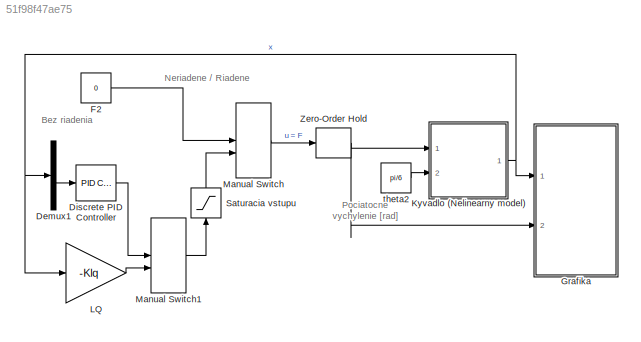
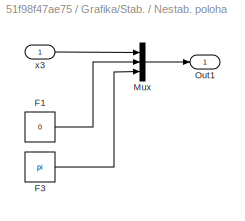
MODEL slx_51f98f47ae75
KIND model
CONFIG AbsTol = auto
CONFIG EnableMultiTasking = on
CONFIG FixedStep = Ts
CONFIG MaxStep = 0.01
CONFIG MinStep = auto
CONFIG PreLoadFcn = m1=0.4;        % Hmotnost vozika [kg]\nm2=0.08;      % Hmotnost kyvadla [kg]\nl=0.2;            % Vzdialenost taziska od osi rotacie [m]\ng=9.81;         % Tiazove zrychlenie [m/s2]\nb=0.1;           % Koeficient trenia [m/s]\n\n\n
CONFIG RelTol = 1e-3
CONFIG SampleTimeConstraint = Unconstrained
CONFIG Solver = FixedStepAuto
CONFIG SolverName = FixedStepAuto
CONFIG StartFcn = kyvadloOfflineLQ
CONFIG StartTime = 0.0
CONFIG StopTime = 10
BLOCK [Demux] Demux1
  DisplayOption = bar
  Ports = [1, 4]
BLOCK [Reference] Discrete PID Controller  REF=simulink/Continuous/PID Controller
  Ports = [1, 1]
  SourceBlock = simulink/Continuous/PID Controller
  SourceProductBaseCode = SL
  SourceProductName = Simulink
  SourceType = PID 1dof
BLOCK [Constant] F2
  Value = 0
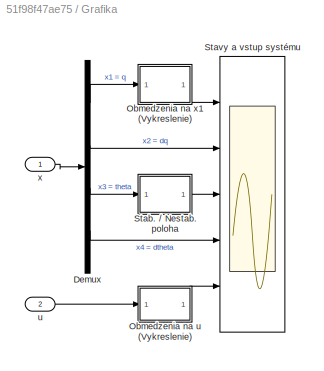
BLOCK [SubSystem] Grafika
  Ports = [2]
  RequestExecContextInheritance = off
BLOCK [Scope] Grafika/ Stavy a vstup systému
  Floating = off
  NumInputPorts = 5
  Ports = [5]
  ScopeSpecificationString = Simulink.scopes.TimeScopeBlockCfg('CurrentConfiguration', extmgr.ConfigurationSet(extmgr.Configuration('Core','General UI',true,'FigureColor',[1 1 1]),extmgr.Configuration('Core','Source UI',true),extmgr.Configuration('Sources','WiredSimulink',true,'DataLoggingSaveFormat','Structure','DataLoggingDecimation','1','DataLoggingDecimateData',true,'DataLogging',true,'DataLoggingVariableName','imp_nonlin...<+7888ch>
BLOCK [Demux] Grafika/Demux
  DisplayOption = bar
  Ports = [1, 4]
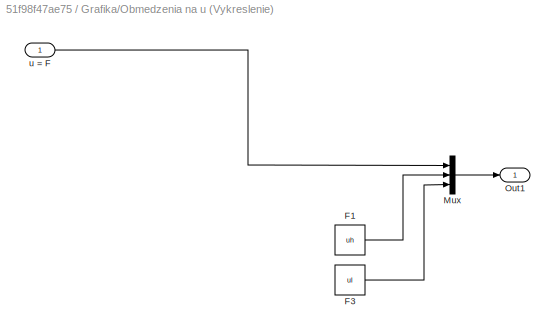
BLOCK [SubSystem] Grafika/Obmedzenia na u (Vykreslenie)
  Ports = [1, 1]
  RequestExecContextInheritance = off
BLOCK [Constant] Grafika/Obmedzenia na u (Vykreslenie)/F1
  Value = uh
BLOCK [Constant] Grafika/Obmedzenia na u (Vykreslenie)/F3
  Value = ul
BLOCK [Mux] Grafika/Obmedzenia na u (Vykreslenie)/Mux
  DisplayOption = bar
  Inputs = 3
  Ports = [3, 1]
BLOCK [Outport] Grafika/Obmedzenia na u (Vykreslenie)/Out1
  IconDisplay = Port number
BLOCK [Inport] Grafika/Obmedzenia na u (Vykreslenie)/u = F
  IconDisplay = Port number
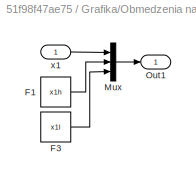
BLOCK [SubSystem] Grafika/Obmedzenia na x1 (Vykreslenie) 
  Ports = [1, 1]
  RequestExecContextInheritance = off
BLOCK [Constant] Grafika/Obmedzenia na x1 (Vykreslenie) /F1
  Value = x1h
BLOCK [Constant] Grafika/Obmedzenia na x1 (Vykreslenie) /F3
  Value = x1l
BLOCK [Mux] Grafika/Obmedzenia na x1 (Vykreslenie) /Mux
  DisplayOption = bar
  Inputs = 3
  Ports = [3, 1]
BLOCK [Outport] Grafika/Obmedzenia na x1 (Vykreslenie) /Out1
  IconDisplay = Port number
BLOCK [Inport] Grafika/Obmedzenia na x1 (Vykreslenie) /x1
  IconDisplay = Port number
BLOCK [SubSystem] Grafika/Stab. // Nestab. poloha
  Ports = [1, 1]
  RequestExecContextInheritance = off
BLOCK [Constant] Grafika/Stab. // Nestab. poloha/F1
  Value = 0
BLOCK [Constant] Grafika/Stab. // Nestab. poloha/F3
  Value = pi
BLOCK [Mux] Grafika/Stab. // Nestab. poloha/Mux
  DisplayOption = bar
  Inputs = 3
  Ports = [3, 1]
BLOCK [Outport] Grafika/Stab. // Nestab. poloha/Out1
  IconDisplay = Port number
BLOCK [Inport] Grafika/Stab. // Nestab. poloha/x3
  IconDisplay = Port number
BLOCK [Inport] Grafika/u
  IconDisplay = Port number
  Port = 2
BLOCK [Inport] Grafika/x
  IconDisplay = Port number
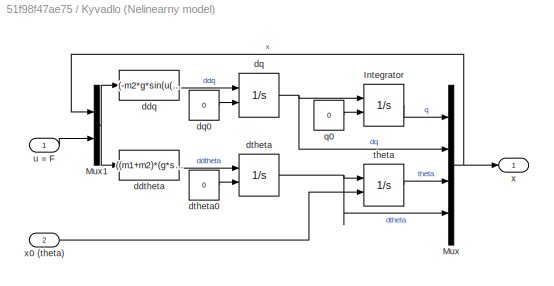
BLOCK [SubSystem] Kyvadlo (Nelinearny model)
  Ports = [2, 1]
  RequestExecContextInheritance = off
BLOCK [Integrator] Kyvadlo (Nelinearny model)/Integrator
  InitialConditionSource = external
  Ports = [2, 1]
BLOCK [Mux] Kyvadlo (Nelinearny model)/Mux
  DisplayOption = bar
  Ports = [4, 1]
BLOCK [Mux] Kyvadlo (Nelinearny model)/Mux1
  DisplayOption = bar
  Inputs = 2
  Ports = [2, 1]
BLOCK [Fcn] Kyvadlo (Nelinearny model)/ddq
  Expr = (-m2*g*sin(u(3))*cos(u(3))+m2*l*((u(4))^2)*sin(u(3))+b*m2*u(4)*cos(u(3))+u(5))/(m1+(1-(cos(u(3)))^2)*m2)
BLOCK [Fcn] Kyvadlo (Nelinearny model)/ddtheta
  Expr = ((m1+m2)*(g*sin(u(3))-b*u(4))-(m2*l*((u(4))^2)*sin(u(3))+u(5))*cos(u(3)))/(l*(m1+(1-(cos(u(3)))^2)*m2))
BLOCK [Integrator] Kyvadlo (Nelinearny model)/dq
  InitialConditionSource = external
  Ports = [2, 1]
BLOCK [Constant] Kyvadlo (Nelinearny model)/dq0
  Value = 0
BLOCK [Integrator] Kyvadlo (Nelinearny model)/dtheta
  InitialConditionSource = external
  Ports = [2, 1]
BLOCK [Constant] Kyvadlo (Nelinearny model)/dtheta0
  Value = 0
BLOCK [Constant] Kyvadlo (Nelinearny model)/q0
  Value = 0
BLOCK [Integrator] Kyvadlo (Nelinearny model)/theta
  InitialConditionSource = external
  Ports = [2, 1]
BLOCK [Inport] Kyvadlo (Nelinearny model)/u = F
  IconDisplay = Port number
BLOCK [Outport] Kyvadlo (Nelinearny model)/x
  IconDisplay = Port number
BLOCK [Inport] Kyvadlo (Nelinearny model)/x0 (theta)
  IconDisplay = Port number
  Port = 2
BLOCK [Gain] LQ
  Gain = -Klq
  Multiplication = Matrix(K*u) (u vector)
  OutDataTypeStr = Inherit: Inherit via internal rule
  ParamDataTypeStr = Inherit: Inherit via internal rule
  SaturateOnIntegerOverflow = off
BLOCK [ManualSwitch] Manual Switch
BLOCK [ManualSwitch] Manual Switch1
BLOCK [Saturate] Saturacia vstupu
  InputPortMap = u0
  LowerLimit = ul
  Ports = [1, 1]
  UpperLimit = uh
BLOCK [ZeroOrderHold] Zero-Order Hold
  SampleTime = Ts
BLOCK [Constant] theta2
  Value = pi/6
ANNOTATION (root): Pociatocne vychylenie [rad]
ANNOTATION (root): Bez riadenia
ANNOTATION (root): Neriadene / Riadene
LINE Demux1:3 -> Discrete PID Controller:1
LINE Discrete PID Controller:1 -> Manual Switch1:1
LINE F2:1 -> Manual Switch:1
LINE Grafika/Demux:1 -> Grafika/Obmedzenia na x1 (Vykreslenie) :1
LINE Grafika/Demux:2 -> Grafika/ Stavy a vstup systému:2
LINE Grafika/Demux:3 -> Grafika/Stab. // Nestab. poloha:1
LINE Grafika/Demux:4 -> Grafika/ Stavy a vstup systému:4
LINE Grafika/Obmedzenia na u (Vykreslenie)/F1:1 -> Grafika/Obmedzenia na u (Vykreslenie)/Mux:2
LINE Grafika/Obmedzenia na u (Vykreslenie)/F3:1 -> Grafika/Obmedzenia na u (Vykreslenie)/Mux:3
LINE Grafika/Obmedzenia na u (Vykreslenie)/Mux:1 -> Grafika/Obmedzenia na u (Vykreslenie)/Out1:1
LINE Grafika/Obmedzenia na u (Vykreslenie)/u = F:1 -> Grafika/Obmedzenia na u (Vykreslenie)/Mux:1
LINE Grafika/Obmedzenia na u (Vykreslenie):1 -> Grafika/ Stavy a vstup systému:5
LINE Grafika/Obmedzenia na x1 (Vykreslenie) /F1:1 -> Grafika/Obmedzenia na x1 (Vykreslenie) /Mux:2
LINE Grafika/Obmedzenia na x1 (Vykreslenie) /F3:1 -> Grafika/Obmedzenia na x1 (Vykreslenie) /Mux:3
LINE Grafika/Obmedzenia na x1 (Vykreslenie) /Mux:1 -> Grafika/Obmedzenia na x1 (Vykreslenie) /Out1:1
LINE Grafika/Obmedzenia na x1 (Vykreslenie) /x1:1 -> Grafika/Obmedzenia na x1 (Vykreslenie) /Mux:1
LINE Grafika/Obmedzenia na x1 (Vykreslenie) :1 -> Grafika/ Stavy a vstup systému:1
LINE Grafika/Stab. // Nestab. poloha/F1:1 -> Grafika/Stab. // Nestab. poloha/Mux:2
LINE Grafika/Stab. // Nestab. poloha/F3:1 -> Grafika/Stab. // Nestab. poloha/Mux:3
LINE Grafika/Stab. // Nestab. poloha/Mux:1 -> Grafika/Stab. // Nestab. poloha/Out1:1
LINE Grafika/Stab. // Nestab. poloha/x3:1 -> Grafika/Stab. // Nestab. poloha/Mux:1
LINE Grafika/Stab. // Nestab. poloha:1 -> Grafika/ Stavy a vstup systému:3
LINE Grafika/u:1 -> Grafika/Obmedzenia na u (Vykreslenie):1
LINE Grafika/x:1 -> Grafika/Demux:1
LINE Kyvadlo (Nelinearny model)/Integrator:1 -> Kyvadlo (Nelinearny model)/Mux:1
NET Kyvadlo (Nelinearny model)/Mux1:1 -> Kyvadlo (Nelinearny model)/ddq:1, Kyvadlo (Nelinearny model)/ddtheta:1
NET Kyvadlo (Nelinearny model)/Mux:1 -> Kyvadlo (Nelinearny model)/Mux1:1, Kyvadlo (Nelinearny model)/x:1
LINE Kyvadlo (Nelinearny model)/ddq:1 -> Kyvadlo (Nelinearny model)/dq:1
LINE Kyvadlo (Nelinearny model)/ddtheta:1 -> Kyvadlo (Nelinearny model)/dtheta:1
LINE Kyvadlo (Nelinearny model)/dq0:1 -> Kyvadlo (Nelinearny model)/dq:2
NET Kyvadlo (Nelinearny model)/dq:1 -> Kyvadlo (Nelinearny model)/Integrator:1, Kyvadlo (Nelinearny model)/Mux:2
LINE Kyvadlo (Nelinearny model)/dtheta0:1 -> Kyvadlo (Nelinearny model)/dtheta:2
NET Kyvadlo (Nelinearny model)/dtheta:1 -> Kyvadlo (Nelinearny model)/Mux:4, Kyvadlo (Nelinearny model)/theta:1
LINE Kyvadlo (Nelinearny model)/q0:1 -> Kyvadlo (Nelinearny model)/Integrator:2
LINE Kyvadlo (Nelinearny model)/theta:1 -> Kyvadlo (Nelinearny model)/Mux:3
LINE Kyvadlo (Nelinearny model)/u = F:1 -> Kyvadlo (Nelinearny model)/Mux1:2
LINE Kyvadlo (Nelinearny model)/x0 (theta):1 -> Kyvadlo (Nelinearny model)/theta:2
NET Kyvadlo (Nelinearny model):1 -> Demux1:1, Grafika:1, LQ:1
LINE LQ:1 -> Manual Switch1:2
LINE Manual Switch1:1 -> Saturacia vstupu:1
LINE Manual Switch:1 -> Zero-Order Hold:1
LINE Saturacia vstupu:1 -> Manual Switch:2
NET Zero-Order Hold:1 -> Grafika:2, Kyvadlo (Nelinearny model):1
LINE theta2:1 -> Kyvadlo (Nelinearny model):2
note: NET lines group one-source signal fan-out (src -> all destinations, sorted); 1:1 wires keep LINE
